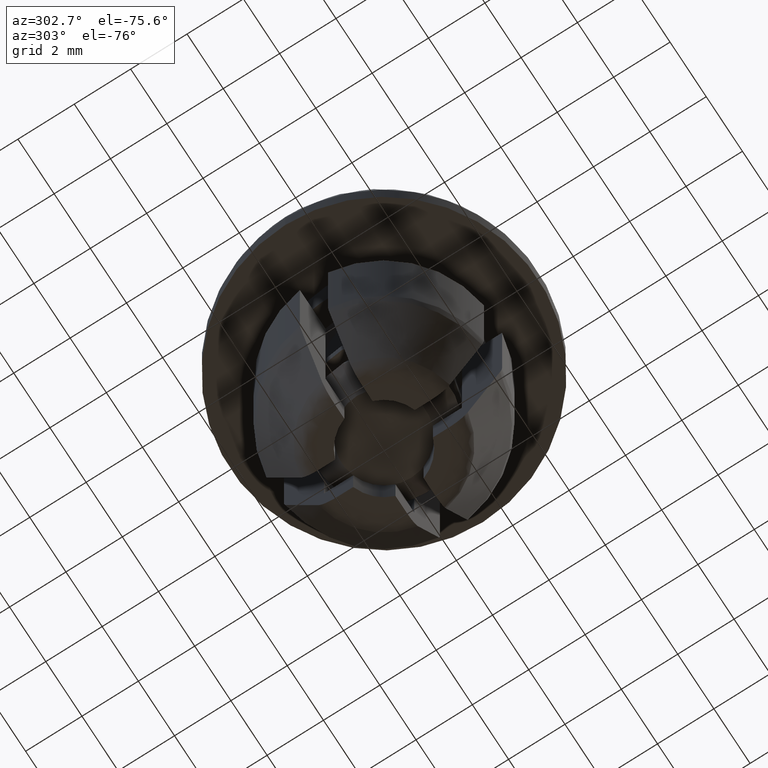
[diagram: clean part render]
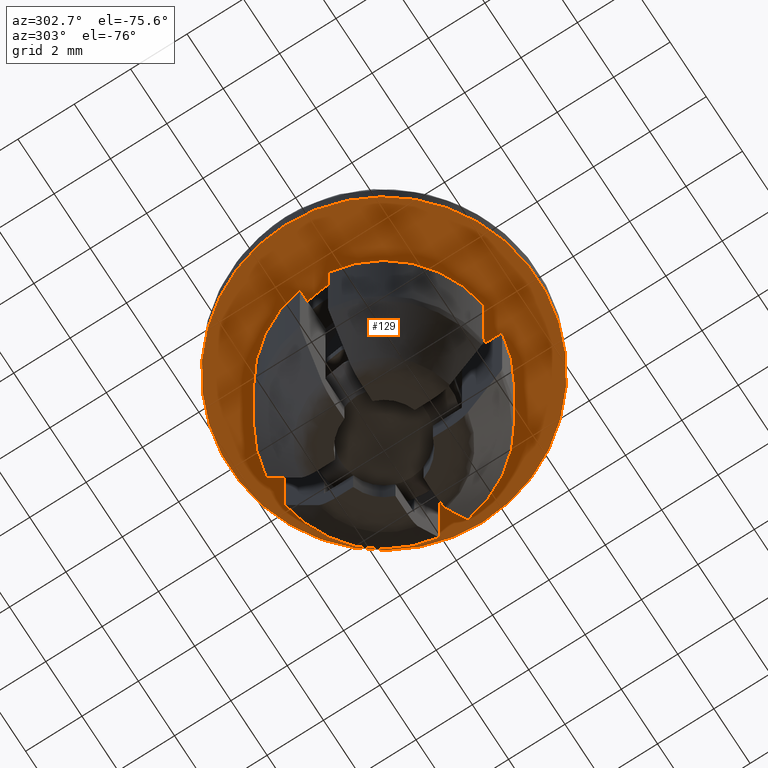
[diagram: same view with one face highlighted and labeled with its STEP entity id]
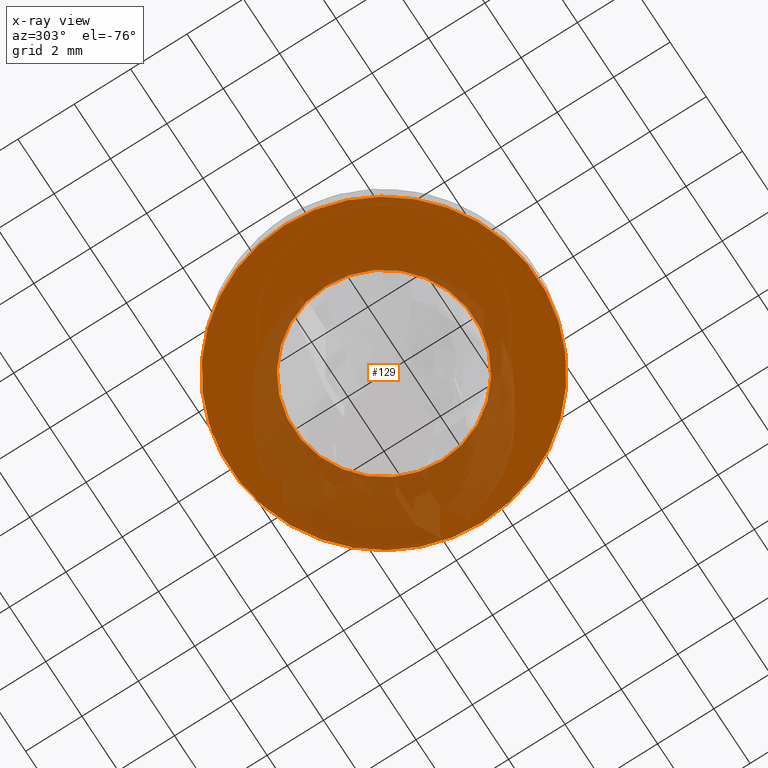
[diagram: x-ray of the same camera — body ghosted, the highlighted face saturated]
A machine part, auxiliary view. The second image highlights one B-rep face of the part: STEP entity #129.
The next image is the same camera in x-ray: the body ghosted, the highlighted face saturated — about 35% of this face is hidden behind the body in this view.
In plain terms, the highlighted planar face has unit normal (0, 0, -1).
Its self-contained STEP definition (entity closure, byte-faithful):
#129=ADVANCED_FACE('',(#363,#364),#362,.T.);
#362=PLANE('',#1092);
#363=FACE_OUTER_BOUND('',#1093,.T.);
#364=FACE_BOUND('',#1094,.T.);
#1089=CARTESIAN_POINT('',(1.25350000000E+01,-1.13276122815E+01,-2.00000000000E+00));
#1090=DIRECTION('',(0.00000000000E+00,0.00000000000E+00,-1.00000000000E+00));
#1091=DIRECTION('',(-1.00000000000E+00,0.00000000000E+00,0.00000000000E+00));
#1092=AXIS2_PLACEMENT_3D('',#1089,#1090,#1091);
#1093=EDGE_LOOP('',(#1648,#1649));
#1094=EDGE_LOOP('',(#1650,#1651));
#1648=ORIENTED_EDGE('',*,*,#2021,.T.);
#1649=ORIENTED_EDGE('',*,*,#2022,.T.);
#1650=ORIENTED_EDGE('',*,*,#2023,.F.);
#1651=ORIENTED_EDGE('',*,*,#2024,.F.);
#2021=EDGE_CURVE('',#2699,#2700,#2701,.T.);
#2022=EDGE_CURVE('',#2700,#2699,#2707,.T.);
#2023=EDGE_CURVE('',#2713,#2714,#2715,.T.);
#2024=EDGE_CURVE('',#2714,#2713,#2721,.T.);
#2699=VERTEX_POINT('',#3803);
#2700=VERTEX_POINT('',#3804);
#2701=CIRCLE('',#3808,5.45000000000E+00);
#2707=CIRCLE('',#3812,5.45000000000E+00);
#2713=VERTEX_POINT('',#3813);
#2714=VERTEX_POINT('',#3814);
#2715=CIRCLE('',#3818,3.20000000000E+00);
#2721=CIRCLE('',#3822,3.20000000000E+00);
#3803=CARTESIAN_POINT('',(-5.45000000000E+00,0.00000000000E+00,-2.00000000000E+00));
#3804=CARTESIAN_POINT('',(5.45000000000E+00,2.96059473233E-16,-2.00000000000E+00));
#3805=CARTESIAN_POINT('',(0.00000000000E+00,0.00000000000E+00,-2.00000000000E+00));
#3806=DIRECTION('',(-0.00000000000E+00,0.00000000000E+00,-1.00000000000E+00));
#3807=DIRECTION('',(-1.00000000000E+00,-1.22460635382E-16,0.00000000000E+00));
#3808=AXIS2_PLACEMENT_3D('',#3805,#3806,#3807);
#3809=CARTESIAN_POINT('',(0.00000000000E+00,0.00000000000E+00,-2.00000000000E+00));
#3810=DIRECTION('',(-0.00000000000E+00,0.00000000000E+00,-1.00000000000E+00));
#3811=DIRECTION('',(-1.00000000000E+00,-1.22460635382E-16,0.00000000000E+00));
#3812=AXIS2_PLACEMENT_3D('',#3809,#3810,#3811);
#3813=CARTESIAN_POINT('',(3.20000000000E+00,1.48029736617E-16,-2.00000000000E+00));
#3814=CARTESIAN_POINT('',(-3.20000000000E+00,0.00000000000E+00,-2.00000000000E+00));
#3815=CARTESIAN_POINT('',(0.00000000000E+00,0.00000000000E+00,-2.00000000000E+00));
#3816=DIRECTION('',(-0.00000000000E+00,0.00000000000E+00,-1.00000000000E+00));
#3817=DIRECTION('',(-1.00000000000E+00,-1.22460635382E-16,0.00000000000E+00));
#3818=AXIS2_PLACEMENT_3D('',#3815,#3816,#3817);
#3819=CARTESIAN_POINT('',(0.00000000000E+00,0.00000000000E+00,-2.00000000000E+00));
#3820=DIRECTION('',(-0.00000000000E+00,0.00000000000E+00,-1.00000000000E+00));
#3821=DIRECTION('',(-1.00000000000E+00,-1.22460635382E-16,0.00000000000E+00));
#3822=AXIS2_PLACEMENT_3D('',#3819,#3820,#3821);